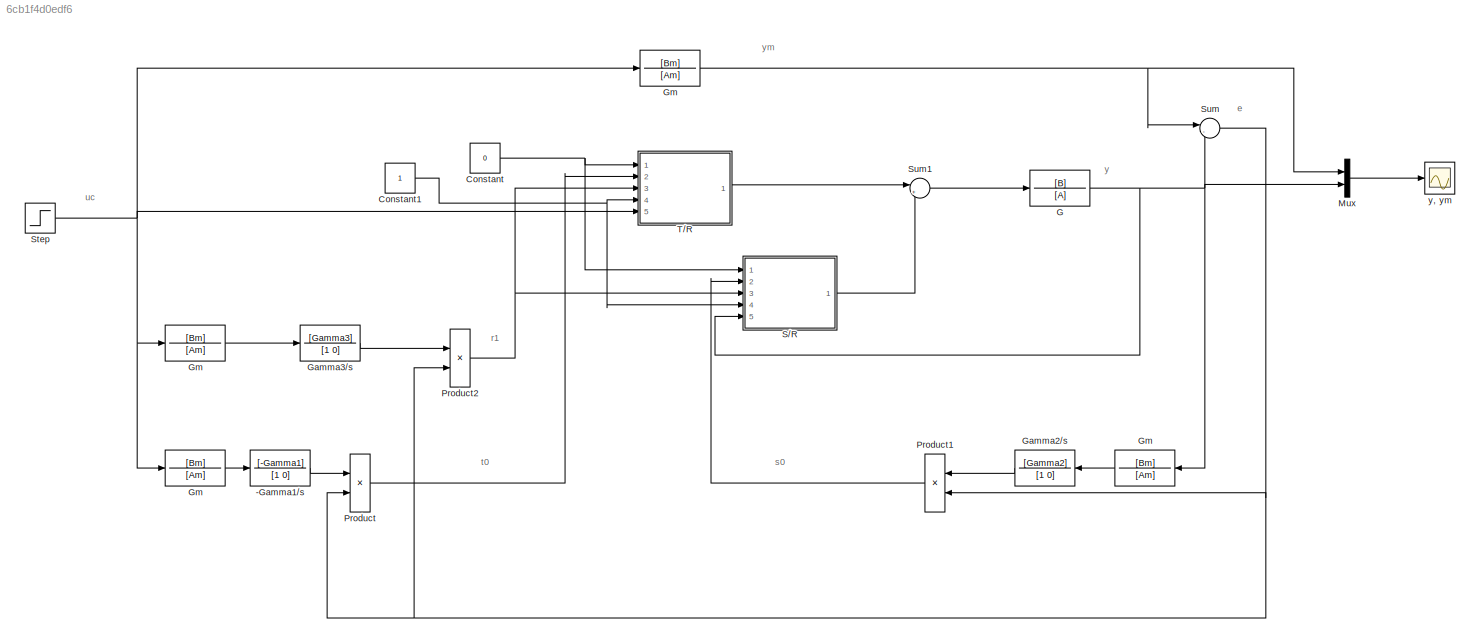
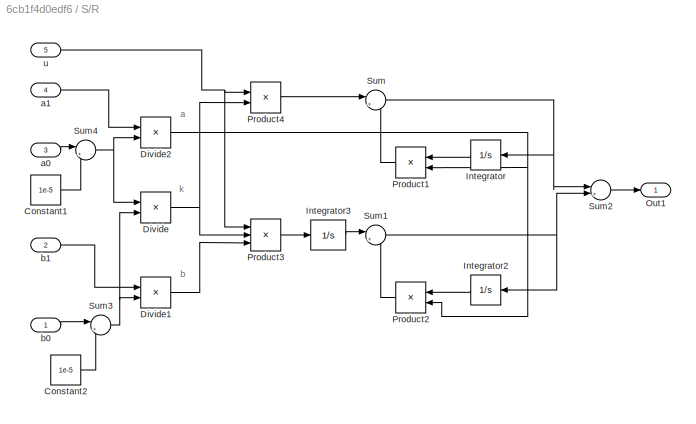
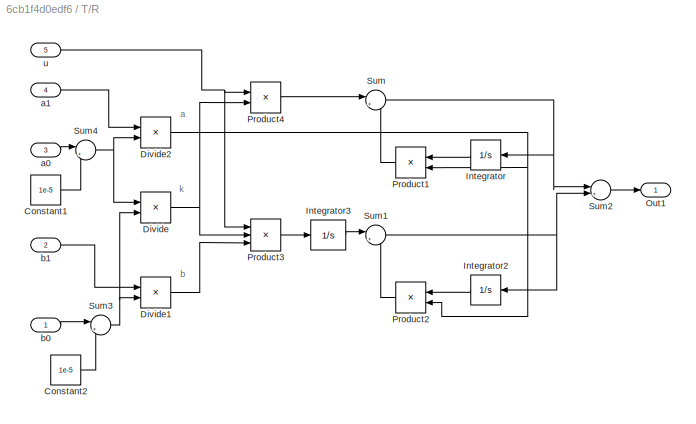
MODEL slx_6cb1f4d0edf6
KIND model
BLOCK [TransferFcn]  Gm 
  Denominator = [Am]
  Numerator = [Bm]
BLOCK [TransferFcn] -Gamma1//s
  Denominator = [1 0]
  Numerator = [-Gamma1]
BLOCK [Constant] Constant
  Value = 0
BLOCK [Constant] Constant1
BLOCK [TransferFcn] G
  Denominator = [A]
  Numerator = [B]
BLOCK [TransferFcn] Gamma2//s
  Denominator = [1 0]
  Numerator = [Gamma2]
BLOCK [TransferFcn] Gamma3//s
  Denominator = [1 0]
  Numerator = [Gamma3]
BLOCK [TransferFcn] Gm
  Denominator = [Am]
  Numerator = [Bm]
BLOCK [TransferFcn] Gm 
  Denominator = [Am]
  Numerator = [Bm]
BLOCK [Mux] Mux
  DisplayOption = bar
  Inputs = 2
  Ports = [2, 1]
BLOCK [Product] Product
  InputSameDT = off
  OutDataTypeStr = Inherit: Inherit via internal rule
  Ports = [2, 1]
  RndMeth = Floor
  SaturateOnIntegerOverflow = off
BLOCK [Product] Product1
  InputSameDT = off
  OutDataTypeStr = Inherit: Inherit via internal rule
  Ports = [2, 1]
  RndMeth = Floor
  SaturateOnIntegerOverflow = off
BLOCK [Product] Product2
  InputSameDT = off
  OutDataTypeStr = Inherit: Inherit via internal rule
  Ports = [2, 1]
  RndMeth = Floor
  SaturateOnIntegerOverflow = off
BLOCK [SubSystem] S//R
  FunctionWithSeparateData = off
  MaskHideContents = off
  MinAlgLoopOccurrences = off
  Opaque = off
  Ports = [5, 1]
  PropExecContextOutsideSubsystem = off
  RTWSystemCode = Auto
  RequestExecContextInheritance = off
BLOCK [Constant] S//R/Constant1
  Value = 1e-5
BLOCK [Constant] S//R/Constant2
  Value = 1e-5
BLOCK [Product] S//R/Divide
  InputSameDT = off
  Inputs = /*
  OutDataTypeStr = Inherit: Inherit via internal rule
  Ports = [2, 1]
  RndMeth = Floor
  SaturateOnIntegerOverflow = off
BLOCK [Product] S//R/Divide1
  InputSameDT = off
  Inputs = */
  OutDataTypeStr = Inherit: Inherit via internal rule
  Ports = [2, 1]
  RndMeth = Floor
  SaturateOnIntegerOverflow = off
BLOCK [Product] S//R/Divide2
  InputSameDT = off
  Inputs = */
  OutDataTypeStr = Inherit: Inherit via internal rule
  Ports = [2, 1]
  RndMeth = Floor
  SaturateOnIntegerOverflow = off
BLOCK [Integrator] S//R/Integrator
  Ports = [1, 1]
BLOCK [Integrator] S//R/Integrator2
  Ports = [1, 1]
BLOCK [Integrator] S//R/Integrator3
  Ports = [1, 1]
BLOCK [Outport] S//R/Out1
  IconDisplay = Port number
BLOCK [Product] S//R/Product1
  InputSameDT = off
  OutDataTypeStr = Inherit: Inherit via internal rule
  Ports = [2, 1]
  RndMeth = Floor
  SaturateOnIntegerOverflow = off
BLOCK [Product] S//R/Product2
  InputSameDT = off
  OutDataTypeStr = Inherit: Inherit via internal rule
  Ports = [2, 1]
  RndMeth = Floor
  SaturateOnIntegerOverflow = off
BLOCK [Product] S//R/Product3
  InputSameDT = off
  Inputs = 3
  OutDataTypeStr = Inherit: Inherit via internal rule
  Ports = [3, 1]
  RndMeth = Floor
  SaturateOnIntegerOverflow = off
BLOCK [Product] S//R/Product4
  InputSameDT = off
  OutDataTypeStr = Inherit: Inherit via internal rule
  Ports = [2, 1]
  RndMeth = Floor
  SaturateOnIntegerOverflow = off
BLOCK [Sum] S//R/Sum
  IconShape = round
  InputSameDT = off
  Inputs = |+-
  OutDataTypeStr = Inherit: Inherit via internal rule
  Ports = [2, 1]
  SaturateOnIntegerOverflow = off
BLOCK [Sum] S//R/Sum1
  IconShape = round
  InputSameDT = off
  Inputs = |+-
  OutDataTypeStr = Inherit: Inherit via internal rule
  Ports = [2, 1]
  SaturateOnIntegerOverflow = off
BLOCK [Sum] S//R/Sum2
  IconShape = round
  InputSameDT = off
  Inputs = |++
  OutDataTypeStr = Inherit: Inherit via internal rule
  Ports = [2, 1]
  SaturateOnIntegerOverflow = off
BLOCK [Sum] S//R/Sum3
  IconShape = round
  InputSameDT = off
  Inputs = |++
  OutDataTypeStr = Inherit: Inherit via internal rule
  Ports = [2, 1]
  SaturateOnIntegerOverflow = off
BLOCK [Sum] S//R/Sum4
  IconShape = round
  InputSameDT = off
  Inputs = |++
  OutDataTypeStr = Inherit: Inherit via internal rule
  Ports = [2, 1]
  SaturateOnIntegerOverflow = off
BLOCK [Inport] S//R/a0
  IconDisplay = Port number
  Port = 3
BLOCK [Inport] S//R/a1
  IconDisplay = Port number
  Port = 4
BLOCK [Inport] S//R/b0
  IconDisplay = Port number
BLOCK [Inport] S//R/b1
  IconDisplay = Port number
  Port = 2
BLOCK [Inport] S//R/u
  IconDisplay = Port number
  Port = 5
BLOCK [Step] Step
  SampleTime = 0
  Time = 0
BLOCK [Sum] Sum
  IconShape = round
  InputSameDT = off
  Inputs = |-+
  OutDataTypeStr = Inherit: Inherit via internal rule
  Ports = [2, 1]
  SaturateOnIntegerOverflow = off
BLOCK [Sum] Sum1
  IconShape = round
  InputSameDT = off
  Inputs = |+-
  OutDataTypeStr = Inherit: Inherit via internal rule
  Ports = [2, 1]
  SaturateOnIntegerOverflow = off
BLOCK [SubSystem] T//R
  FunctionWithSeparateData = off
  MaskHideContents = off
  MinAlgLoopOccurrences = off
  Opaque = off
  Ports = [5, 1]
  PropExecContextOutsideSubsystem = off
  RTWSystemCode = Auto
  RequestExecContextInheritance = off
BLOCK [Constant] T//R/Constant1
  Value = 1e-5
BLOCK [Constant] T//R/Constant2
  Value = 1e-5
BLOCK [Product] T//R/Divide
  InputSameDT = off
  Inputs = /*
  OutDataTypeStr = Inherit: Inherit via internal rule
  Ports = [2, 1]
  RndMeth = Floor
  SaturateOnIntegerOverflow = off
BLOCK [Product] T//R/Divide1
  InputSameDT = off
  Inputs = */
  OutDataTypeStr = Inherit: Inherit via internal rule
  Ports = [2, 1]
  RndMeth = Floor
  SaturateOnIntegerOverflow = off
BLOCK [Product] T//R/Divide2
  InputSameDT = off
  Inputs = */
  OutDataTypeStr = Inherit: Inherit via internal rule
  Ports = [2, 1]
  RndMeth = Floor
  SaturateOnIntegerOverflow = off
BLOCK [Integrator] T//R/Integrator
  Ports = [1, 1]
BLOCK [Integrator] T//R/Integrator2
  Ports = [1, 1]
BLOCK [Integrator] T//R/Integrator3
  Ports = [1, 1]
BLOCK [Outport] T//R/Out1
  IconDisplay = Port number
BLOCK [Product] T//R/Product1
  InputSameDT = off
  OutDataTypeStr = Inherit: Inherit via internal rule
  Ports = [2, 1]
  RndMeth = Floor
  SaturateOnIntegerOverflow = off
BLOCK [Product] T//R/Product2
  InputSameDT = off
  OutDataTypeStr = Inherit: Inherit via internal rule
  Ports = [2, 1]
  RndMeth = Floor
  SaturateOnIntegerOverflow = off
BLOCK [Product] T//R/Product3
  InputSameDT = off
  Inputs = 3
  OutDataTypeStr = Inherit: Inherit via internal rule
  Ports = [3, 1]
  RndMeth = Floor
  SaturateOnIntegerOverflow = off
BLOCK [Product] T//R/Product4
  InputSameDT = off
  OutDataTypeStr = Inherit: Inherit via internal rule
  Ports = [2, 1]
  RndMeth = Floor
  SaturateOnIntegerOverflow = off
BLOCK [Sum] T//R/Sum
  IconShape = round
  InputSameDT = off
  Inputs = |+-
  OutDataTypeStr = Inherit: Inherit via internal rule
  Ports = [2, 1]
  SaturateOnIntegerOverflow = off
BLOCK [Sum] T//R/Sum1
  IconShape = round
  InputSameDT = off
  Inputs = |+-
  OutDataTypeStr = Inherit: Inherit via internal rule
  Ports = [2, 1]
  SaturateOnIntegerOverflow = off
BLOCK [Sum] T//R/Sum2
  IconShape = round
  InputSameDT = off
  Inputs = |++
  OutDataTypeStr = Inherit: Inherit via internal rule
  Ports = [2, 1]
  SaturateOnIntegerOverflow = off
BLOCK [Sum] T//R/Sum3
  IconShape = round
  InputSameDT = off
  Inputs = |++
  OutDataTypeStr = Inherit: Inherit via internal rule
  Ports = [2, 1]
  SaturateOnIntegerOverflow = off
BLOCK [Sum] T//R/Sum4
  IconShape = round
  InputSameDT = off
  Inputs = |++
  OutDataTypeStr = Inherit: Inherit via internal rule
  Ports = [2, 1]
  SaturateOnIntegerOverflow = off
BLOCK [Inport] T//R/a0
  IconDisplay = Port number
  Port = 3
BLOCK [Inport] T//R/a1
  IconDisplay = Port number
  Port = 4
BLOCK [Inport] T//R/b0
  IconDisplay = Port number
BLOCK [Inport] T//R/b1
  IconDisplay = Port number
  Port = 2
BLOCK [Inport] T//R/u
  IconDisplay = Port number
  Port = 5
BLOCK [Scope] y, ym
  DataFormat = StructureWithTime
  Decimation = 10
  Floating = off
  LegendLocations = 0.91027      0.7087    0.054173    0.053097
  LimitDataPoints = off
  NumInputPorts = 1
  Ports = [1]
  SampleInput = on
  SampleTime = 0
  ShowLegends = on
  TickLabels = on
  YMin = 1.75
ANNOTATION (root): e
ANNOTATION (root): r1
ANNOTATION (root): s0
ANNOTATION (root): t0
ANNOTATION (root): uc
ANNOTATION (root): y
ANNOTATION (root): ym
ANNOTATION S//R: a
ANNOTATION S//R: b
ANNOTATION S//R: k
ANNOTATION T//R: a
ANNOTATION T//R: b
ANNOTATION T//R: k
LINE  Gm :1 -> Gamma2//s:1
LINE -Gamma1//s:1 -> Product:1
NET Constant1:1 -> S//R:4, T//R:4
NET Constant:1 -> S//R:1, T//R:1
NET G:1 ->  Gm :1, Mux:2, S//R:5, Sum:2
LINE Gamma2//s:1 -> Product1:1
LINE Gamma3//s:1 -> Product2:1
NET Gm :1 -> -Gamma1//s:1, Gamma3//s:1
NET Gm:1 -> Mux:1, Sum:1
LINE Mux:1 -> y, ym:1
LINE Product1:1 -> S//R:2
NET Product2:1 -> S//R:3, T//R:3
LINE Product:1 -> T//R:2
LINE S//R/Constant1:1 -> S//R/Sum4:2
LINE S//R/Constant2:1 -> S//R/Sum3:2
LINE S//R/Divide1:1 -> S//R/Product3:3
NET S//R/Divide2:1 -> S//R/Product1:2, S//R/Product2:2
NET S//R/Divide:1 -> S//R/Product3:2, S//R/Product4:2
LINE S//R/Integrator2:1 -> S//R/Product2:1
LINE S//R/Integrator3:1 -> S//R/Sum1:1
LINE S//R/Integrator:1 -> S//R/Product1:1
LINE S//R/Product1:1 -> S//R/Sum:2
LINE S//R/Product2:1 -> S//R/Sum1:2
LINE S//R/Product3:1 -> S//R/Integrator3:1
LINE S//R/Product4:1 -> S//R/Sum:1
NET S//R/Sum1:1 -> S//R/Integrator2:1, S//R/Sum2:2
LINE S//R/Sum2:1 -> S//R/Out1:1
NET S//R/Sum3:1 -> S//R/Divide1:2, S//R/Divide:2
NET S//R/Sum4:1 -> S//R/Divide2:2, S//R/Divide:1
NET S//R/Sum:1 -> S//R/Integrator:1, S//R/Sum2:1
LINE S//R/a0:1 -> S//R/Sum4:1
LINE S//R/a1:1 -> S//R/Divide2:1
LINE S//R/b0:1 -> S//R/Sum3:1
LINE S//R/b1:1 -> S//R/Divide1:1
NET S//R/u:1 -> S//R/Product3:1, S//R/Product4:1
LINE S//R:1 -> Sum1:2
NET Step:1 -> Gm :1, Gm:1, T//R:5
LINE Sum1:1 -> G:1
NET Sum:1 -> Product1:2, Product2:2, Product:2
LINE T//R/Constant1:1 -> T//R/Sum4:2
LINE T//R/Constant2:1 -> T//R/Sum3:2
LINE T//R/Divide1:1 -> T//R/Product3:3
NET T//R/Divide2:1 -> T//R/Product1:2, T//R/Product2:2
NET T//R/Divide:1 -> T//R/Product3:2, T//R/Product4:2
LINE T//R/Integrator2:1 -> T//R/Product2:1
LINE T//R/Integrator3:1 -> T//R/Sum1:1
LINE T//R/Integrator:1 -> T//R/Product1:1
LINE T//R/Product1:1 -> T//R/Sum:2
LINE T//R/Product2:1 -> T//R/Sum1:2
LINE T//R/Product3:1 -> T//R/Integrator3:1
LINE T//R/Product4:1 -> T//R/Sum:1
NET T//R/Sum1:1 -> T//R/Integrator2:1, T//R/Sum2:2
LINE T//R/Sum2:1 -> T//R/Out1:1
NET T//R/Sum3:1 -> T//R/Divide1:2, T//R/Divide:2
NET T//R/Sum4:1 -> T//R/Divide2:2, T//R/Divide:1
NET T//R/Sum:1 -> T//R/Integrator:1, T//R/Sum2:1
LINE T//R/a0:1 -> T//R/Sum4:1
LINE T//R/a1:1 -> T//R/Divide2:1
LINE T//R/b0:1 -> T//R/Sum3:1
LINE T//R/b1:1 -> T//R/Divide1:1
NET T//R/u:1 -> T//R/Product3:1, T//R/Product4:1
LINE T//R:1 -> Sum1:1
note: NET lines group one-source signal fan-out (src -> all destinations, sorted); 1:1 wires keep LINE
